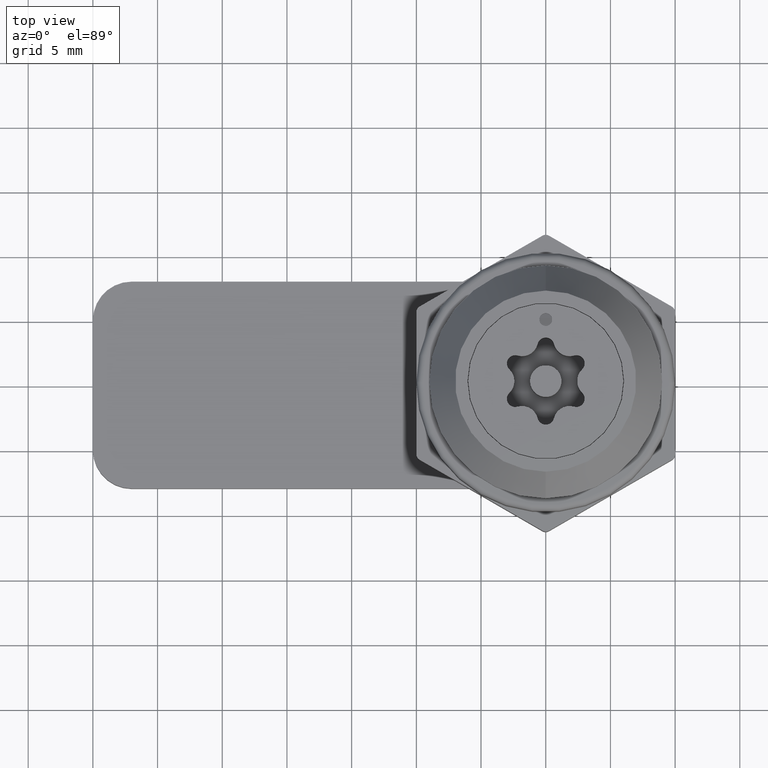
[diagram: clean part render]
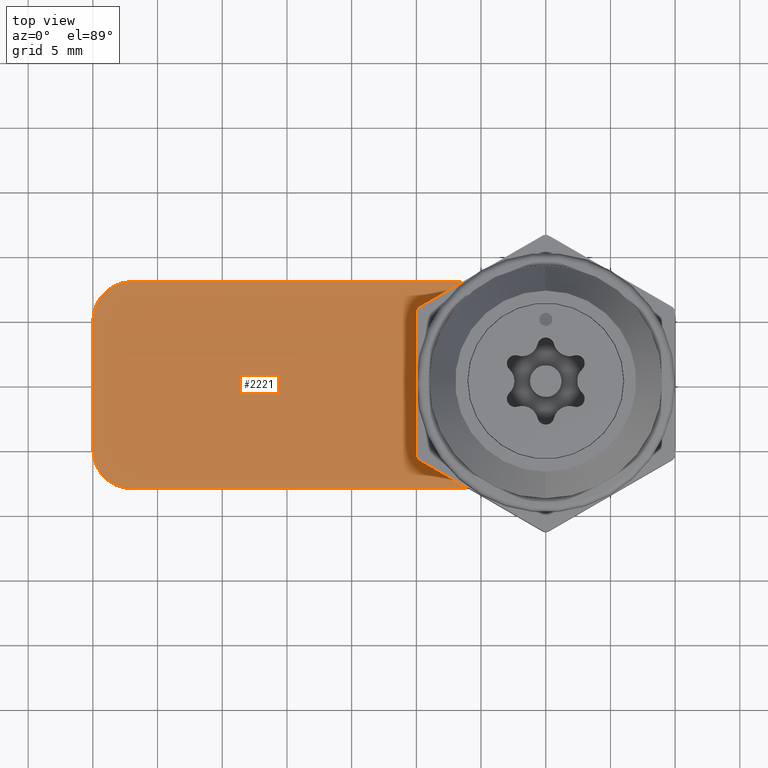
[diagram: same view with one face highlighted and labeled with its STEP entity id]
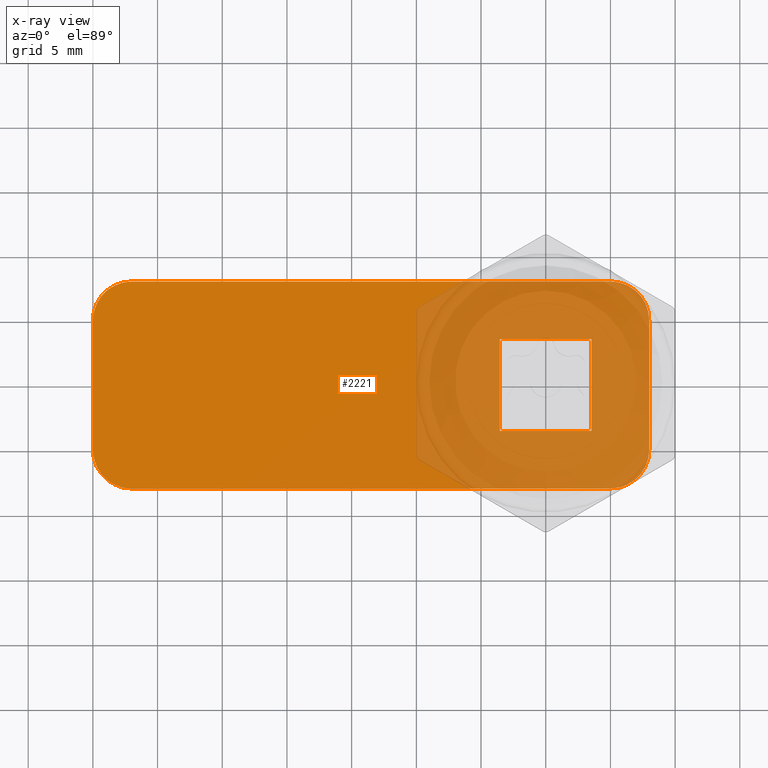
[diagram: x-ray of the same camera — body ghosted, the highlighted face saturated]
A machine part, top view. The second image highlights one B-rep face of the part: STEP entity #2221.
The next image is the same camera in x-ray: the body ghosted, the highlighted face saturated — about 36% of this face is hidden behind the body in this view.
In plain terms, the highlighted planar face has unit normal (0, 0, 1).
Its self-contained STEP definition (entity closure, byte-faithful):
#38 = CIRCLE ( 'NONE', #4414, 2.999999999999999100 ) ;
#197 = DIRECTION ( 'NONE',  ( 1.000000000000000000, 0.0000000000000000000, 0.0000000000000000000 ) ) ;
#210 = ORIENTED_EDGE ( 'NONE', *, *, #4473, .T. ) ;
#276 = CARTESIAN_POINT ( 'NONE',  ( 3.549999999999998900, 3.550000000000001600, 1.149999999999999900 ) ) ;
#281 = VERTEX_POINT ( 'NONE', #2556 ) ;
#282 = AXIS2_PLACEMENT_3D ( 'NONE', #5413, #2800, #197 ) ;
#307 = CARTESIAN_POINT ( 'NONE',  ( -3.550000000000000700, 3.550000000000001600, 1.149999999999999900 ) ) ;
#320 = CARTESIAN_POINT ( 'NONE',  ( -35.00000000000000000, 8.000000000000000000, 1.149999999999999900 ) ) ;
#429 = FACE_OUTER_BOUND ( 'NONE', #4139, .T. ) ;
#709 = CARTESIAN_POINT ( 'NONE',  ( 5.000000000000000000, 5.000000000000000000, 1.149999999999999900 ) ) ;
#747 = DIRECTION ( 'NONE',  ( 0.0000000000000000000, -1.000000000000000000, 0.0000000000000000000 ) ) ;
#792 = DIRECTION ( 'NONE',  ( 1.221636250687892500E-016, -1.000000000000000000, 0.0000000000000000000 ) ) ;
#839 = EDGE_CURVE ( 'NONE', #5263, #5090, #3218, .T. ) ;
#879 = EDGE_CURVE ( 'NONE', #1926, #2245, #3084, .T. ) ;
#914 = VECTOR ( 'NONE', #3226, 1000.000000000000000 ) ;
#1145 = DIRECTION ( 'NONE',  ( 1.000000000000000000, 0.0000000000000000000, 0.0000000000000000000 ) ) ;
#1172 = ORIENTED_EDGE ( 'NONE', *, *, #1490, .F. ) ;
#1188 = CARTESIAN_POINT ( 'NONE',  ( 4.999999999999997300, 8.000000000000000000, 1.149999999999999900 ) ) ;
#1239 = VECTOR ( 'NONE', #1288, 1000.000000000000000 ) ;
#1256 = CARTESIAN_POINT ( 'NONE',  ( -3.550000000000000700, 3.550000000000001600, 1.149999999999999900 ) ) ;
#1288 = DIRECTION ( 'NONE',  ( -1.000000000000000000, -0.0000000000000000000, -0.0000000000000000000 ) ) ;
#1296 = CARTESIAN_POINT ( 'NONE',  ( 0.0000000000000000000, 0.0000000000000000000, 1.149999999999999900 ) ) ;
#1339 = CARTESIAN_POINT ( 'NONE',  ( -32.00000000000000000, -5.000000000000000900, 1.149999999999999900 ) ) ;
#1430 = DIRECTION ( 'NONE',  ( 1.000000000000000000, 0.0000000000000000000, 0.0000000000000000000 ) ) ;
#1490 = EDGE_CURVE ( 'NONE', #3282, #2664, #1707, .T. ) ;
#1566 = VERTEX_POINT ( 'NONE', #1188 ) ;
#1592 = EDGE_CURVE ( 'NONE', #2664, #5263, #5458, .T. ) ;
#1685 = ORIENTED_EDGE ( 'NONE', *, *, #4048, .T. ) ;
#1707 = LINE ( 'NONE', #307, #1239 ) ;
#1754 = PLANE ( 'NONE',  #2478 ) ;
#1774 = DIRECTION ( 'NONE',  ( 1.000000000000000000, 0.0000000000000000000, 0.0000000000000000000 ) ) ;
#1795 = VECTOR ( 'NONE', #1430, 1000.000000000000000 ) ;
#1839 = VERTEX_POINT ( 'NONE', #4195 ) ;
#1919 = ORIENTED_EDGE ( 'NONE', *, *, #4037, .F. ) ;
#1926 = VERTEX_POINT ( 'NONE', #4860 ) ;
#2012 = DIRECTION ( 'NONE',  ( -1.221636250687892500E-016, 1.000000000000000000, -0.0000000000000000000 ) ) ;
#2022 = DIRECTION ( 'NONE',  ( 1.000000000000000000, 0.0000000000000000000, 0.0000000000000000000 ) ) ;
#2052 = CARTESIAN_POINT ( 'NONE',  ( 4.999999999999997300, -5.000000000000000000, 1.149999999999999900 ) ) ;
#2067 = CARTESIAN_POINT ( 'NONE',  ( 4.999999999999997300, -8.000000000000000000, 1.149999999999999900 ) ) ;
#2146 = CIRCLE ( 'NONE', #5406, 2.999999999999999100 ) ;
#2221 = ADVANCED_FACE ( 'NONE', ( #2600, #429 ), #1754, .T. ) ;
#2234 = LINE ( 'NONE', #320, #5422 ) ;
#2243 = CARTESIAN_POINT ( 'NONE',  ( 3.549999999999999800, -3.549999999999998000, 1.149999999999999900 ) ) ;
#2245 = VERTEX_POINT ( 'NONE', #2067 ) ;
#2343 = CARTESIAN_POINT ( 'NONE',  ( -35.00000000000000000, -8.000000000000000000, 1.149999999999999900 ) ) ;
#2390 = ORIENTED_EDGE ( 'NONE', *, *, #1592, .F. ) ;
#2460 = CARTESIAN_POINT ( 'NONE',  ( -3.549999999999999800, -3.549999999999998000, 1.149999999999999900 ) ) ;
#2467 = EDGE_CURVE ( 'NONE', #3138, #1926, #2146, .T. ) ;
#2478 = AXIS2_PLACEMENT_3D ( 'NONE', #1296, #4188, #4749 ) ;
#2483 = DIRECTION ( 'NONE',  ( 1.000000000000000000, 0.0000000000000000000, 0.0000000000000000000 ) ) ;
#2500 = ORIENTED_EDGE ( 'NONE', *, *, #879, .T. ) ;
#2556 = CARTESIAN_POINT ( 'NONE',  ( -35.00000000000000000, 5.000000000000000000, 1.149999999999999900 ) ) ;
#2600 = FACE_BOUND ( 'NONE', #2651, .T. ) ;
#2651 = EDGE_LOOP ( 'NONE', ( #5114, #4233, #2390, #1172 ) ) ;
#2662 = EDGE_CURVE ( 'NONE', #2245, #1839, #38, .T. ) ;
#2664 = VERTEX_POINT ( 'NONE', #2915 ) ;
#2800 = DIRECTION ( 'NONE',  ( -0.0000000000000000000, 0.0000000000000000000, 1.000000000000000000 ) ) ;
#2852 = LINE ( 'NONE', #5060, #3872 ) ;
#2860 = ORIENTED_EDGE ( 'NONE', *, *, #2467, .T. ) ;
#2915 = CARTESIAN_POINT ( 'NONE',  ( -3.550000000000000700, 3.550000000000001600, 1.149999999999999900 ) ) ;
#3084 = LINE ( 'NONE', #2343, #1795 ) ;
#3138 = VERTEX_POINT ( 'NONE', #4273 ) ;
#3157 = VERTEX_POINT ( 'NONE', #3853 ) ;
#3218 = LINE ( 'NONE', #2460, #914 ) ;
#3226 = DIRECTION ( 'NONE',  ( 1.000000000000000000, 0.0000000000000000000, 0.0000000000000000000 ) ) ;
#3282 = VERTEX_POINT ( 'NONE', #4376 ) ;
#3333 = DIRECTION ( 'NONE',  ( 0.0000000000000000000, -1.000000000000000000, 0.0000000000000000000 ) ) ;
#3376 = VECTOR ( 'NONE', #2012, 1000.000000000000000 ) ;
#3422 = EDGE_CURVE ( 'NONE', #5334, #1566, #5460, .T. ) ;
#3518 = LINE ( 'NONE', #276, #3376 ) ;
#3752 = DIRECTION ( 'NONE',  ( -0.0000000000000000000, 0.0000000000000000000, 1.000000000000000000 ) ) ;
#3853 = CARTESIAN_POINT ( 'NONE',  ( -32.00000000000000000, 8.000000000000000000, 1.149999999999999900 ) ) ;
#3872 = VECTOR ( 'NONE', #2022, 1000.000000000000000 ) ;
#4015 = EDGE_CURVE ( 'NONE', #5090, #3282, #3518, .T. ) ;
#4037 = EDGE_CURVE ( 'NONE', #5334, #1839, #5552, .T. ) ;
#4048 = EDGE_CURVE ( 'NONE', #281, #3138, #2234, .T. ) ;
#4139 = EDGE_LOOP ( 'NONE', ( #1685, #2860, #2500, #4532, #1919, #4161, #4672, #210 ) ) ;
#4161 = ORIENTED_EDGE ( 'NONE', *, *, #3422, .T. ) ;
#4188 = DIRECTION ( 'NONE',  ( -0.0000000000000000000, 0.0000000000000000000, 1.000000000000000000 ) ) ;
#4195 = CARTESIAN_POINT ( 'NONE',  ( 8.000000000000000000, -5.000000000000000900, 1.149999999999999900 ) ) ;
#4233 = ORIENTED_EDGE ( 'NONE', *, *, #839, .F. ) ;
#4273 = CARTESIAN_POINT ( 'NONE',  ( -35.00000000000000000, -5.000000000000000900, 1.149999999999999900 ) ) ;
#4376 = CARTESIAN_POINT ( 'NONE',  ( 3.549999999999998900, 3.550000000000001600, 1.149999999999999900 ) ) ;
#4380 = DIRECTION ( 'NONE',  ( -0.0000000000000000000, 0.0000000000000000000, 1.000000000000000000 ) ) ;
#4401 = VECTOR ( 'NONE', #3333, 1000.000000000000000 ) ;
#4414 = AXIS2_PLACEMENT_3D ( 'NONE', #2052, #5087, #2483 ) ;
#4429 = AXIS2_PLACEMENT_3D ( 'NONE', #709, #3752, #1145 ) ;
#4459 = CARTESIAN_POINT ( 'NONE',  ( 8.000000000000000000, 5.000000000000000000, 1.149999999999999900 ) ) ;
#4473 = EDGE_CURVE ( 'NONE', #3157, #281, #5419, .T. ) ;
#4532 = ORIENTED_EDGE ( 'NONE', *, *, #2662, .T. ) ;
#4672 = ORIENTED_EDGE ( 'NONE', *, *, #5583, .F. ) ;
#4749 = DIRECTION ( 'NONE',  ( 1.000000000000000000, 0.0000000000000000000, 0.0000000000000000000 ) ) ;
#4860 = CARTESIAN_POINT ( 'NONE',  ( -32.00000000000000000, -8.000000000000000000, 1.149999999999999900 ) ) ;
#5060 = CARTESIAN_POINT ( 'NONE',  ( -35.00000000000000000, 8.000000000000000000, 1.149999999999999900 ) ) ;
#5067 = CARTESIAN_POINT ( 'NONE',  ( 8.000000000000000000, 8.000000000000000000, 1.149999999999999900 ) ) ;
#5087 = DIRECTION ( 'NONE',  ( -0.0000000000000000000, 0.0000000000000000000, 1.000000000000000000 ) ) ;
#5090 = VERTEX_POINT ( 'NONE', #2243 ) ;
#5114 = ORIENTED_EDGE ( 'NONE', *, *, #4015, .F. ) ;
#5263 = VERTEX_POINT ( 'NONE', #5271 ) ;
#5271 = CARTESIAN_POINT ( 'NONE',  ( -3.549999999999999800, -3.549999999999998000, 1.149999999999999900 ) ) ;
#5334 = VERTEX_POINT ( 'NONE', #4459 ) ;
#5406 = AXIS2_PLACEMENT_3D ( 'NONE', #1339, #4380, #1774 ) ;
#5413 = CARTESIAN_POINT ( 'NONE',  ( -32.00000000000000000, 5.000000000000000000, 1.149999999999999900 ) ) ;
#5419 = CIRCLE ( 'NONE', #282, 2.999999999999999100 ) ;
#5422 = VECTOR ( 'NONE', #747, 1000.000000000000000 ) ;
#5458 = LINE ( 'NONE', #1256, #5594 ) ;
#5460 = CIRCLE ( 'NONE', #4429, 3.000000000000000000 ) ;
#5552 = LINE ( 'NONE', #5067, #4401 ) ;
#5583 = EDGE_CURVE ( 'NONE', #3157, #1566, #2852, .T. ) ;
#5594 = VECTOR ( 'NONE', #792, 1000.000000000000000 ) ;